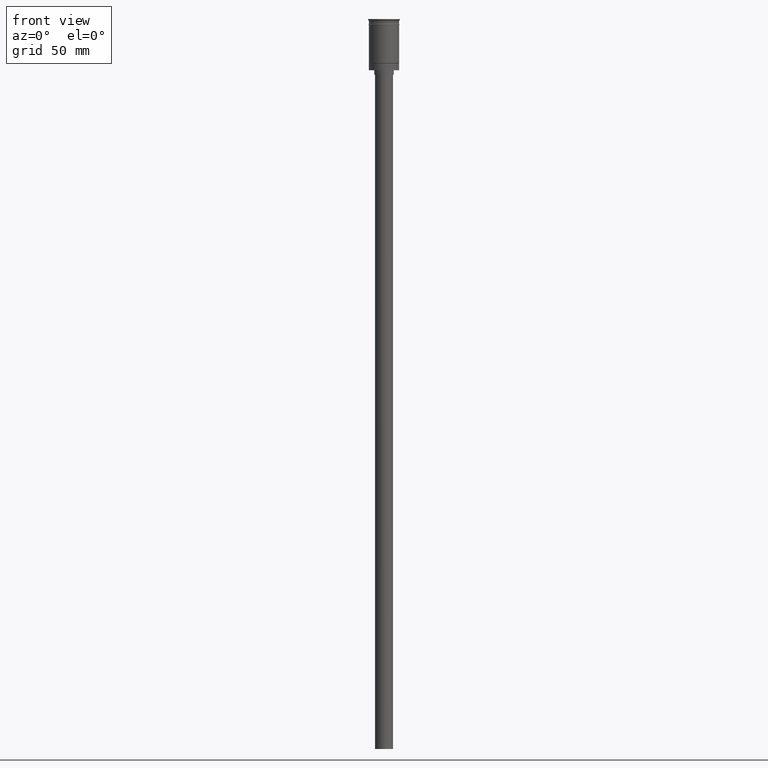
[diagram: clean part render]
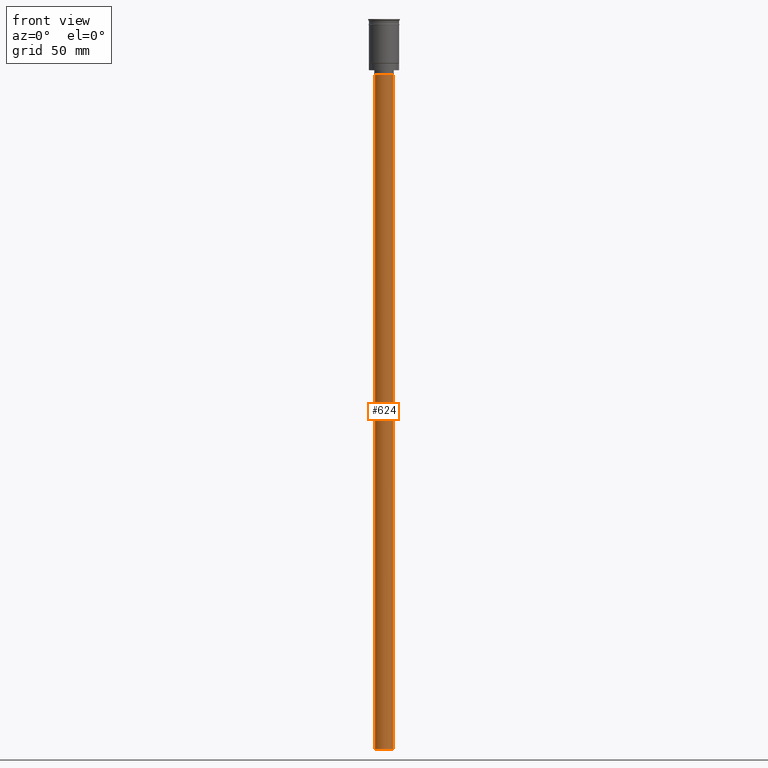
[diagram: same view with one face highlighted and labeled with its STEP entity id]
A machine part, front view. The second image highlights one B-rep face of the part: STEP entity #624.
In plain terms, the highlighted cylindrical surface (edge-blend (fillet) strip) has radius 6 mm, axis along (-0, -0, 1).
Its self-contained STEP definition (entity closure, byte-faithful):
#14 = VERTEX_POINT ( 'NONE', #1516 ) ;
#122 = VERTEX_POINT ( 'NONE', #978 ) ;
#126 = AXIS2_PLACEMENT_3D ( 'NONE', #272, #1592, #1249 ) ;
#197 = DIRECTION ( 'NONE',  ( -0.000000000000000000, -0.000000000000000000, 1.000000000000000000 ) ) ;
#228 = EDGE_CURVE ( 'NONE', #349, #967, #429, .T. ) ;
#232 = VECTOR ( 'NONE', #197, 1000.000000000000000 ) ;
#267 = DIRECTION ( 'NONE',  ( -1.000000000000000000, 0.000000000000000000, 0.000000000000000000 ) ) ;
#272 = CARTESIAN_POINT ( 'NONE',  ( 0.000000000000000000, 0.000000000000000000, -484.0000000000000000 ) ) ;
#273 = EDGE_CURVE ( 'NONE', #122, #349, #804, .T. ) ;
#349 = VERTEX_POINT ( 'NONE', #1491 ) ;
#370 = DIRECTION ( 'NONE',  ( -0.000000000000000000, -0.000000000000000000, 1.000000000000000000 ) ) ;
#389 = CARTESIAN_POINT ( 'NONE',  ( 0.000000000000000000, 0.000000000000000000, -484.0000000000000000 ) ) ;
#409 = VECTOR ( 'NONE', #370, 1000.000000000000000 ) ;
#429 = CIRCLE ( 'NONE', #1385, 6.000000000000000888 ) ;
#492 = CARTESIAN_POINT ( 'NONE',  ( -6.000000000000000888, 7.347880794884120722E-16, -484.0000000000000000 ) ) ;
#624 = ADVANCED_FACE ( 'NONE', ( #637 ), #859, .T. ) ;
#637 = FACE_OUTER_BOUND ( 'NONE', #1165, .T. ) ;
#645 = EDGE_CURVE ( 'NONE', #14, #967, #1492, .T. ) ;
#653 = EDGE_CURVE ( 'NONE', #122, #14, #1513, .T. ) ;
#769 = DIRECTION ( 'NONE',  ( 0.000000000000000000, 0.000000000000000000, -1.000000000000000000 ) ) ;
#804 = LINE ( 'NONE', #934, #232 ) ;
#814 = ORIENTED_EDGE ( 'NONE', *, *, #228, .T. ) ;
#859 = CYLINDRICAL_SURFACE ( 'NONE', #126, 6.000000000000000888 ) ;
#934 = CARTESIAN_POINT ( 'NONE',  ( 6.000000000000000888, 0.000000000000000000, -484.0000000000000000 ) ) ;
#942 = DIRECTION ( 'NONE',  ( 0.000000000000000000, 0.000000000000000000, -1.000000000000000000 ) ) ;
#967 = VERTEX_POINT ( 'NONE', #1573 ) ;
#978 = CARTESIAN_POINT ( 'NONE',  ( 6.000000000000000888, 0.000000000000000000, -484.0000000000000000 ) ) ;
#1165 = EDGE_LOOP ( 'NONE', ( #1206, #1300, #1523, #814 ) ) ;
#1206 = ORIENTED_EDGE ( 'NONE', *, *, #645, .F. ) ;
#1249 = DIRECTION ( 'NONE',  ( 1.000000000000000000, 0.000000000000000000, 0.000000000000000000 ) ) ;
#1300 = ORIENTED_EDGE ( 'NONE', *, *, #653, .F. ) ;
#1315 = AXIS2_PLACEMENT_3D ( 'NONE', #389, #769, #267 ) ;
#1332 = CARTESIAN_POINT ( 'NONE',  ( 0.000000000000000000, 0.000000000000000000, -37.00000000000000000 ) ) ;
#1385 = AXIS2_PLACEMENT_3D ( 'NONE', #1332, #942, #1426 ) ;
#1426 = DIRECTION ( 'NONE',  ( -1.000000000000000000, 0.000000000000000000, 0.000000000000000000 ) ) ;
#1491 = CARTESIAN_POINT ( 'NONE',  ( 6.000000000000000888, 0.000000000000000000, -37.00000000000000000 ) ) ;
#1492 = LINE ( 'NONE', #492, #409 ) ;
#1513 = CIRCLE ( 'NONE', #1315, 6.000000000000000888 ) ;
#1516 = CARTESIAN_POINT ( 'NONE',  ( -6.000000000000000888, 7.347880794884120722E-16, -484.0000000000000000 ) ) ;
#1523 = ORIENTED_EDGE ( 'NONE', *, *, #273, .T. ) ;
#1573 = CARTESIAN_POINT ( 'NONE',  ( -6.000000000000000888, 7.347880794884120722E-16, -37.00000000000000000 ) ) ;
#1592 = DIRECTION ( 'NONE',  ( -0.000000000000000000, -0.000000000000000000, 1.000000000000000000 ) ) ;